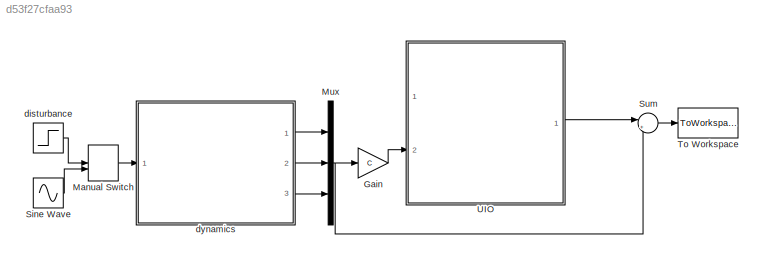
MODEL slx_d53f27cfaa93
KIND model
BLOCK [Gain] Gain
  Gain = C
  Multiplication = Matrix(K*u)
  OutDataTypeStr = Inherit: Inherit via internal rule
  ParamDataTypeStr = Inherit: Inherit via internal rule
  SaturateOnIntegerOverflow = off
BLOCK [ManualSwitch] Manual Switch
BLOCK [Mux] Mux
  DisplayOption = bar
  Inputs = 3
  Ports = [3, 1]
BLOCK [Sin] Sine Wave
  Amplitude = 20
  Frequency = 2
  Ports = [0, 1]
  SampleTime = 0
BLOCK [Sum] Sum
  IconShape = round
  InputSameDT = off
  Inputs = |+-
  OutDataTypeStr = Inherit: Inherit via internal rule
  Ports = [2, 1]
  SaturateOnIntegerOverflow = off
BLOCK [ToWorkspace] To Workspace
  FixptAsFi = on
  MaxDataPoints = inf
  Ports = [1]
  SampleTime = -1
  Save2DSignal = 3-D array (concatenate along third dimension)
  VariableName = Xerr
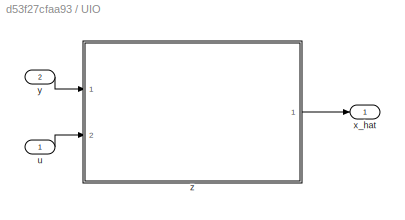
BLOCK [SubSystem] UIO
  Ports = [2, 1]
  RequestExecContextInheritance = off
BLOCK [Inport] UIO/u
  IconDisplay = Port number
BLOCK [Outport] UIO/x_hat
  IconDisplay = Port number
BLOCK [Inport] UIO/y
  IconDisplay = Port number
  Port = 2
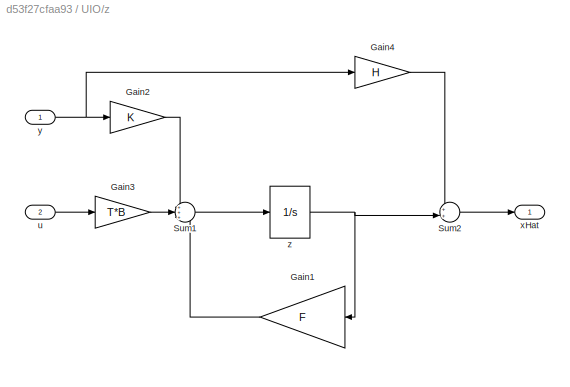
BLOCK [SubSystem] UIO/z
  Ports = [2, 1]
  RequestExecContextInheritance = off
BLOCK [Gain] UIO/z/Gain1
  Gain = F
  Multiplication = Matrix(K*u)
  OutDataTypeStr = Inherit: Inherit via internal rule
  ParamDataTypeStr = Inherit: Inherit via internal rule
  SaturateOnIntegerOverflow = off
BLOCK [Gain] UIO/z/Gain2
  Gain = K
  Multiplication = Matrix(K*u)
  OutDataTypeStr = Inherit: Inherit via internal rule
  ParamDataTypeStr = Inherit: Inherit via internal rule
  SaturateOnIntegerOverflow = off
BLOCK [Gain] UIO/z/Gain3
  Gain = T*B
  Multiplication = Matrix(K*u)
  OutDataTypeStr = Inherit: Inherit via internal rule
  ParamDataTypeStr = Inherit: Inherit via internal rule
  SaturateOnIntegerOverflow = off
BLOCK [Gain] UIO/z/Gain4
  Gain = H
  Multiplication = Matrix(K*u)
  OutDataTypeStr = Inherit: Inherit via internal rule
  ParamDataTypeStr = Inherit: Inherit via internal rule
  SaturateOnIntegerOverflow = off
BLOCK [Sum] UIO/z/Sum1
  IconShape = round
  InputSameDT = off
  Inputs = +++
  OutDataTypeStr = Inherit: Inherit via internal rule
  Ports = [3, 1]
  SaturateOnIntegerOverflow = off
BLOCK [Sum] UIO/z/Sum2
  IconShape = round
  InputSameDT = off
  Inputs = ++|
  OutDataTypeStr = Inherit: Inherit via internal rule
  Ports = [2, 1]
  SaturateOnIntegerOverflow = off
BLOCK [Inport] UIO/z/u
  IconDisplay = Port number
  Port = 2
BLOCK [Outport] UIO/z/xHat
  IconDisplay = Port number
BLOCK [Inport] UIO/z/y
  IconDisplay = Port number
BLOCK [Integrator] UIO/z/z
  InitialCondition = x1_0
  Ports = [1, 1]
BLOCK [Step] disturbance
  After = d
  SampleTime = 0
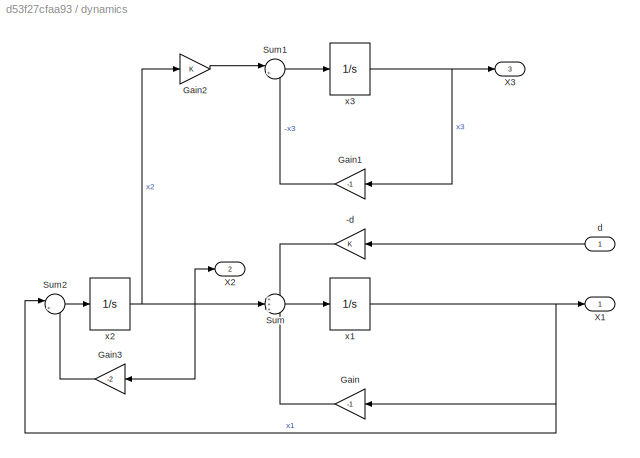
BLOCK [SubSystem] dynamics
  Ports = [1, 3]
  RequestExecContextInheritance = off
BLOCK [Gain] dynamics/-d
  OutDataTypeStr = Inherit: Inherit via internal rule
  ParamDataTypeStr = Inherit: Inherit via internal rule
  SaturateOnIntegerOverflow = off
BLOCK [Gain] dynamics/Gain
  Gain = -1
  OutDataTypeStr = Inherit: Inherit via internal rule
  ParamDataTypeStr = Inherit: Inherit via internal rule
  SaturateOnIntegerOverflow = off
BLOCK [Gain] dynamics/Gain1
  Gain = -1
  OutDataTypeStr = Inherit: Inherit via internal rule
  ParamDataTypeStr = Inherit: Inherit via internal rule
  SaturateOnIntegerOverflow = off
BLOCK [Gain] dynamics/Gain2
  OutDataTypeStr = Inherit: Inherit via internal rule
  ParamDataTypeStr = Inherit: Inherit via internal rule
  SaturateOnIntegerOverflow = off
BLOCK [Gain] dynamics/Gain3
  Gain = -2
  OutDataTypeStr = Inherit: Inherit via internal rule
  ParamDataTypeStr = Inherit: Inherit via internal rule
  SaturateOnIntegerOverflow = off
BLOCK [Sum] dynamics/Sum
  IconShape = round
  InputSameDT = off
  Inputs = +++
  OutDataTypeStr = Inherit: Inherit via internal rule
  Ports = [3, 1]
  SaturateOnIntegerOverflow = off
BLOCK [Sum] dynamics/Sum1
  IconShape = round
  InputSameDT = off
  Inputs = |++
  OutDataTypeStr = Inherit: Inherit via internal rule
  Ports = [2, 1]
  SaturateOnIntegerOverflow = off
BLOCK [Sum] dynamics/Sum2
  IconShape = round
  InputSameDT = off
  Inputs = |++
  OutDataTypeStr = Inherit: Inherit via internal rule
  Ports = [2, 1]
  SaturateOnIntegerOverflow = off
BLOCK [Outport] dynamics/X1
  IconDisplay = Port number
BLOCK [Outport] dynamics/X2
  IconDisplay = Port number
  Port = 2
BLOCK [Outport] dynamics/X3
  IconDisplay = Port number
  Port = 3
BLOCK [Inport] dynamics/d
  IconDisplay = Port number
BLOCK [Integrator] dynamics/x1
  InitialCondition = x1_0
  Ports = [1, 1]
BLOCK [Integrator] dynamics/x2
  InitialCondition = x2_0
  Ports = [1, 1]
BLOCK [Integrator] dynamics/x3
  InitialCondition = x3_0
  Ports = [1, 1]
LINE Gain:1 -> UIO:2
LINE Manual Switch:1 -> dynamics:1
NET Mux:1 -> Gain:1, Sum:2
LINE Sine Wave:1 -> Manual Switch:2
LINE Sum:1 -> To Workspace:1
LINE UIO/u:1 -> UIO/z:2
LINE UIO/y:1 -> UIO/z:1
LINE UIO/z/Gain1:1 -> UIO/z/Sum1:3
LINE UIO/z/Gain2:1 -> UIO/z/Sum1:1
LINE UIO/z/Gain3:1 -> UIO/z/Sum1:2
LINE UIO/z/Gain4:1 -> UIO/z/Sum2:1
LINE UIO/z/Sum1:1 -> UIO/z/z:1
LINE UIO/z/Sum2:1 -> UIO/z/xHat:1
LINE UIO/z/u:1 -> UIO/z/Gain3:1
NET UIO/z/y:1 -> UIO/z/Gain2:1, UIO/z/Gain4:1
NET UIO/z/z:1 -> UIO/z/Gain1:1, UIO/z/Sum2:2
LINE UIO/z:1 -> UIO/x_hat:1
LINE UIO:1 -> Sum:1
LINE disturbance:1 -> Manual Switch:1
LINE dynamics/-d:1 -> dynamics/Sum:1
LINE dynamics/Gain1:1 -> dynamics/Sum1:2
LINE dynamics/Gain2:1 -> dynamics/Sum1:1
LINE dynamics/Gain3:1 -> dynamics/Sum2:2
LINE dynamics/Gain:1 -> dynamics/Sum:3
LINE dynamics/Sum1:1 -> dynamics/x3:1
LINE dynamics/Sum2:1 -> dynamics/x2:1
LINE dynamics/Sum:1 -> dynamics/x1:1
LINE dynamics/d:1 -> dynamics/-d:1
NET dynamics/x1:1 -> dynamics/Gain:1, dynamics/Sum2:1, dynamics/X1:1
NET dynamics/x2:1 -> dynamics/Gain2:1, dynamics/Gain3:1, dynamics/Sum:2, dynamics/X2:1
NET dynamics/x3:1 -> dynamics/Gain1:1, dynamics/X3:1
LINE dynamics:1 -> Mux:1
LINE dynamics:2 -> Mux:2
LINE dynamics:3 -> Mux:3
note: NET lines group one-source signal fan-out (src -> all destinations, sorted); 1:1 wires keep LINE
